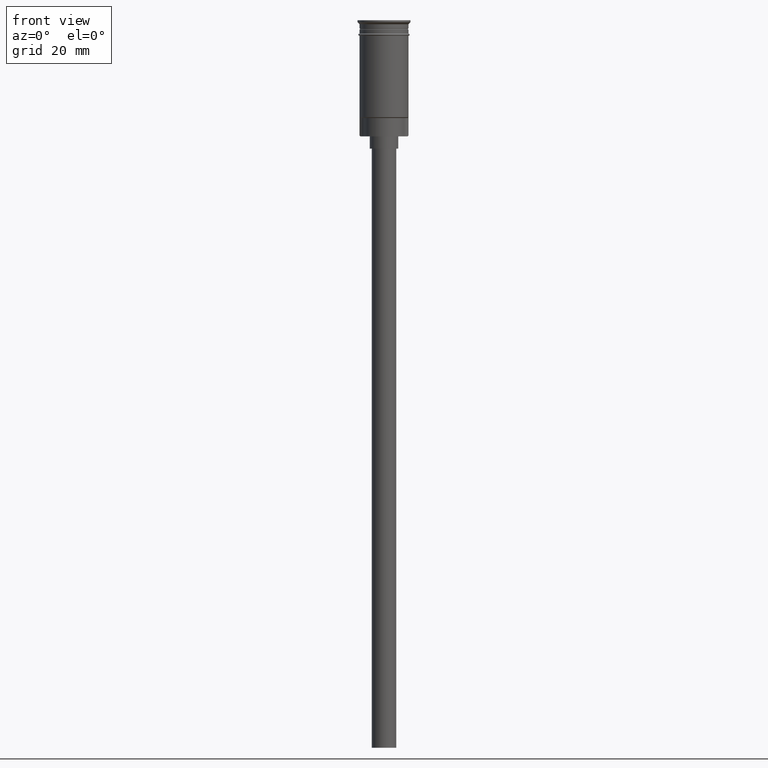
[diagram: clean part render]
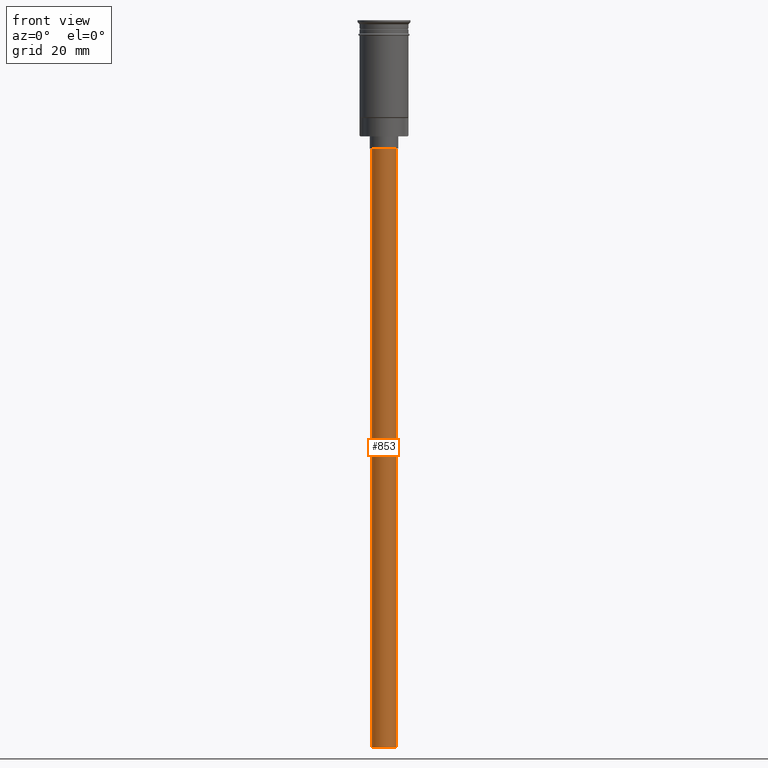
[diagram: same view with one face highlighted and labeled with its STEP entity id]
A machine part, front view. The second image highlights one B-rep face of the part: STEP entity #853.
In plain terms, the highlighted cylindrical surface (edge-blend (fillet) strip) has radius 3 mm, axis along (-0, -0, 1).
Its self-contained STEP definition (entity closure, byte-faithful):
#21 = CYLINDRICAL_SURFACE ( 'NONE', #1302, 3.000000000000000444 ) ;
#44 = DIRECTION ( 'NONE',  ( 1.000000000000000000, 0.000000000000000000, 0.000000000000000000 ) ) ;
#94 = LINE ( 'NONE', #582, #115 ) ;
#107 = EDGE_CURVE ( 'NONE', #1004, #748, #412, .T. ) ;
#115 = VECTOR ( 'NONE', #1227, 1000.000000000000000 ) ;
#126 = CARTESIAN_POINT ( 'NONE',  ( -3.000000000000000444, 3.673940397442060361E-16, -31.50000000000000000 ) ) ;
#179 = AXIS2_PLACEMENT_3D ( 'NONE', #867, #1587, #473 ) ;
#183 = VECTOR ( 'NONE', #841, 1000.000000000000000 ) ;
#267 = ORIENTED_EDGE ( 'NONE', *, *, #276, .T. ) ;
#276 = EDGE_CURVE ( 'NONE', #1454, #375, #986, .T. ) ;
#277 = EDGE_LOOP ( 'NONE', ( #855, #709, #1362, #267 ) ) ;
#283 = DIRECTION ( 'NONE',  ( -0.000000000000000000, -0.000000000000000000, 1.000000000000000000 ) ) ;
#375 = VERTEX_POINT ( 'NONE', #126 ) ;
#412 = CIRCLE ( 'NONE', #179, 3.000000000000000444 ) ;
#473 = DIRECTION ( 'NONE',  ( -1.000000000000000000, 0.000000000000000000, 0.000000000000000000 ) ) ;
#536 = DIRECTION ( 'NONE',  ( 0.000000000000000000, 0.000000000000000000, -1.000000000000000000 ) ) ;
#582 = CARTESIAN_POINT ( 'NONE',  ( 3.000000000000000444, 0.000000000000000000, -178.5000000000000000 ) ) ;
#649 = CARTESIAN_POINT ( 'NONE',  ( 3.000000000000000444, 0.000000000000000000, -31.50000000000000000 ) ) ;
#709 = ORIENTED_EDGE ( 'NONE', *, *, #107, .F. ) ;
#748 = VERTEX_POINT ( 'NONE', #1596 ) ;
#781 = EDGE_CURVE ( 'NONE', #1004, #1454, #94, .T. ) ;
#816 = EDGE_CURVE ( 'NONE', #748, #375, #1594, .T. ) ;
#826 = CARTESIAN_POINT ( 'NONE',  ( 0.000000000000000000, 0.000000000000000000, -31.50000000000000000 ) ) ;
#841 = DIRECTION ( 'NONE',  ( -0.000000000000000000, -0.000000000000000000, 1.000000000000000000 ) ) ;
#853 = ADVANCED_FACE ( 'NONE', ( #1383 ), #21, .T. ) ;
#855 = ORIENTED_EDGE ( 'NONE', *, *, #816, .F. ) ;
#867 = CARTESIAN_POINT ( 'NONE',  ( 0.000000000000000000, 0.000000000000000000, -178.5000000000000000 ) ) ;
#913 = DIRECTION ( 'NONE',  ( -1.000000000000000000, 0.000000000000000000, 0.000000000000000000 ) ) ;
#986 = CIRCLE ( 'NONE', #1525, 3.000000000000000444 ) ;
#1004 = VERTEX_POINT ( 'NONE', #1537 ) ;
#1227 = DIRECTION ( 'NONE',  ( -0.000000000000000000, -0.000000000000000000, 1.000000000000000000 ) ) ;
#1302 = AXIS2_PLACEMENT_3D ( 'NONE', #1512, #283, #44 ) ;
#1362 = ORIENTED_EDGE ( 'NONE', *, *, #781, .T. ) ;
#1383 = FACE_OUTER_BOUND ( 'NONE', #277, .T. ) ;
#1454 = VERTEX_POINT ( 'NONE', #649 ) ;
#1512 = CARTESIAN_POINT ( 'NONE',  ( 0.000000000000000000, 0.000000000000000000, -178.5000000000000000 ) ) ;
#1525 = AXIS2_PLACEMENT_3D ( 'NONE', #826, #536, #913 ) ;
#1537 = CARTESIAN_POINT ( 'NONE',  ( 3.000000000000000444, 0.000000000000000000, -178.5000000000000000 ) ) ;
#1566 = CARTESIAN_POINT ( 'NONE',  ( -3.000000000000000444, 3.673940397442060361E-16, -178.5000000000000000 ) ) ;
#1587 = DIRECTION ( 'NONE',  ( 0.000000000000000000, 0.000000000000000000, -1.000000000000000000 ) ) ;
#1594 = LINE ( 'NONE', #1566, #183 ) ;
#1596 = CARTESIAN_POINT ( 'NONE',  ( -3.000000000000000444, 3.673940397442060361E-16, -178.5000000000000000 ) ) ;